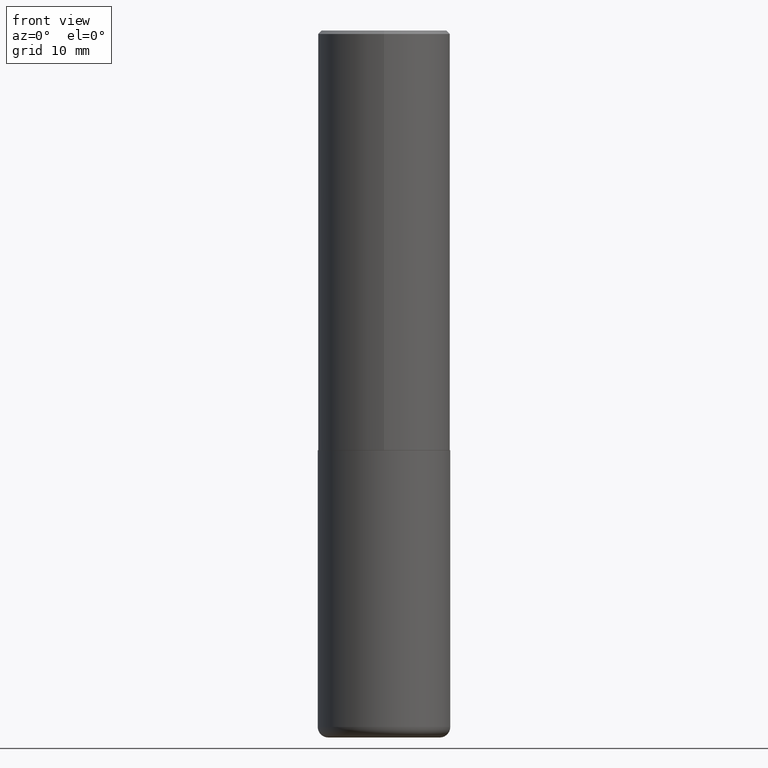
[diagram: clean part render]
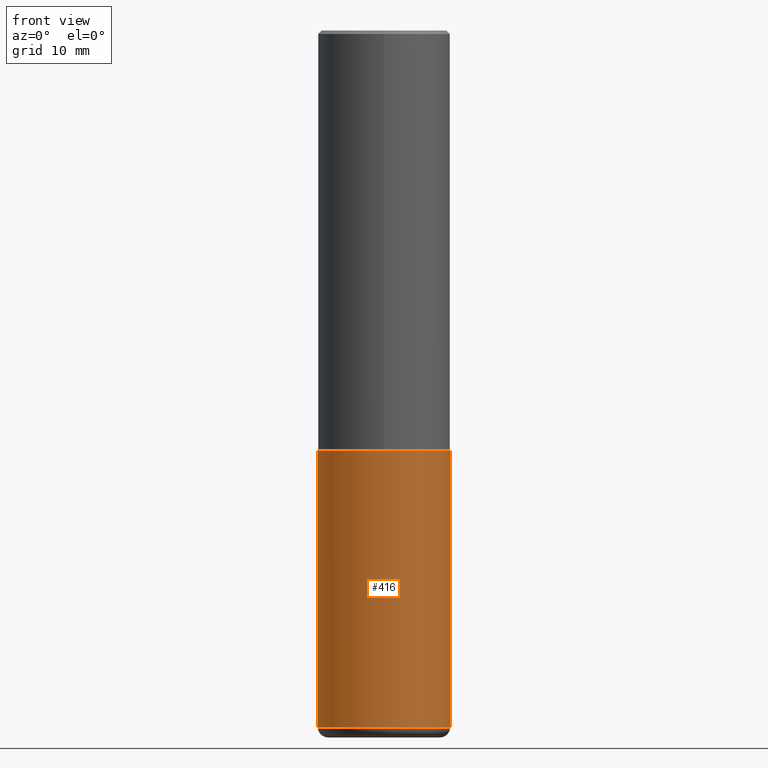
[diagram: same view with one face highlighted and labeled with its STEP entity id]
A machine part, front view. The second image highlights one B-rep face of the part: STEP entity #416.
In plain terms, the highlighted cylindrical surface (partial cylindrical patch) has radius 9.525 mm, axis along (-0, 0, 1).
Its self-contained STEP definition (entity closure, byte-faithful):
#3 = ORIENTED_EDGE ( 'NONE', *, *, #187, .F. ) ;
#5 = LINE ( 'NONE', #204, #127 ) ;
#11 = CARTESIAN_POINT ( 'NONE',  ( 0.3750000000000000555, -1.091087918388482013E-14, -2.375000000000000000 ) ) ;
#21 = CARTESIAN_POINT ( 'NONE',  ( 9.635147096369438236E-29, -1.375643647504199401E-14, -3.939999999999999947 ) ) ;
#26 = VERTEX_POINT ( 'NONE', #252 ) ;
#40 = ORIENTED_EDGE ( 'NONE', *, *, #383, .T. ) ;
#42 = CARTESIAN_POINT ( 'NONE',  ( -0.3750000000000000555, 2.664535259100376091E-15, -1.844600658845589598E-29 ) ) ;
#43 = CARTESIAN_POINT ( 'NONE',  ( 0.000000000000000000, 0.000000000000000000, 0.000000000000000000 ) ) ;
#53 = DIRECTION ( 'NONE',  ( -2.445468806185136597E-29, 3.491481338843145583E-15, 1.000000000000000000 ) ) ;
#54 = VERTEX_POINT ( 'NONE', #265 ) ;
#55 = CYLINDRICAL_SURFACE ( 'NONE', #119, 0.3750000000000000555 ) ;
#56 = DIRECTION ( 'NONE',  ( 1.000000000000000000, -6.982962677686266711E-15, 0.000000000000000000 ) ) ;
#71 = AXIS2_PLACEMENT_3D ( 'NONE', #21, #53, #169 ) ;
#72 = LINE ( 'NONE', #42, #306 ) ;
#100 = CARTESIAN_POINT ( 'NONE',  ( 5.807988414689699417E-29, -8.292268179752470118E-15, -2.375000000000000000 ) ) ;
#119 = AXIS2_PLACEMENT_3D ( 'NONE', #43, #178, #330 ) ;
#124 = EDGE_LOOP ( 'NONE', ( #3, #40, #357, #348 ) ) ;
#127 = VECTOR ( 'NONE', #336, 39.37007874015748143 ) ;
#128 = AXIS2_PLACEMENT_3D ( 'NONE', #100, #176, #56 ) ;
#169 = DIRECTION ( 'NONE',  ( 1.000000000000000000, -6.982962677686266711E-15, 0.000000000000000000 ) ) ;
#176 = DIRECTION ( 'NONE',  ( -2.445468806185136597E-29, 3.491481338843145583E-15, 1.000000000000000000 ) ) ;
#177 = VERTEX_POINT ( 'NONE', #11 ) ;
#178 = DIRECTION ( 'NONE',  ( -2.445468806185136597E-29, 3.491481338843145583E-15, 1.000000000000000000 ) ) ;
#182 = CIRCLE ( 'NONE', #128, 0.3750000000000000555 ) ;
#187 = EDGE_CURVE ( 'NONE', #221, #54, #72, .T. ) ;
#197 = CIRCLE ( 'NONE', #71, 0.3750000000000000555 ) ;
#199 = FACE_OUTER_BOUND ( 'NONE', #124, .T. ) ;
#204 = CARTESIAN_POINT ( 'NONE',  ( 0.3750000000000000555, -2.618611004132350016E-15, 1.828566290923476203E-29 ) ) ;
#210 = EDGE_CURVE ( 'NONE', #26, #177, #5, .T. ) ;
#221 = VERTEX_POINT ( 'NONE', #264 ) ;
#252 = CARTESIAN_POINT ( 'NONE',  ( 0.3750000000000001110, -1.637504747917434403E-14, -3.939999999999999947 ) ) ;
#264 = CARTESIAN_POINT ( 'NONE',  ( -0.3750000000000001110, -1.109190121594161832E-14, -3.939999999999999947 ) ) ;
#265 = CARTESIAN_POINT ( 'NONE',  ( -0.3750000000000000555, -8.359817068296857158E-15, -2.375000000000000000 ) ) ;
#306 = VECTOR ( 'NONE', #366, 39.37007874015748143 ) ;
#330 = DIRECTION ( 'NONE',  ( 1.000000000000000000, -6.982962677686265922E-15, 4.876176775795935793E-29 ) ) ;
#336 = DIRECTION ( 'NONE',  ( -2.445468806185136877E-29, 3.491481338843145188E-15, 1.000000000000000000 ) ) ;
#348 = ORIENTED_EDGE ( 'NONE', *, *, #401, .F. ) ;
#357 = ORIENTED_EDGE ( 'NONE', *, *, #210, .T. ) ;
#366 = DIRECTION ( 'NONE',  ( -2.445468806185136877E-29, 3.491481338843145188E-15, 1.000000000000000000 ) ) ;
#383 = EDGE_CURVE ( 'NONE', #221, #26, #197, .T. ) ;
#401 = EDGE_CURVE ( 'NONE', #54, #177, #182, .T. ) ;
#416 = ADVANCED_FACE ( 'NONE', ( #199 ), #55, .T. ) ;